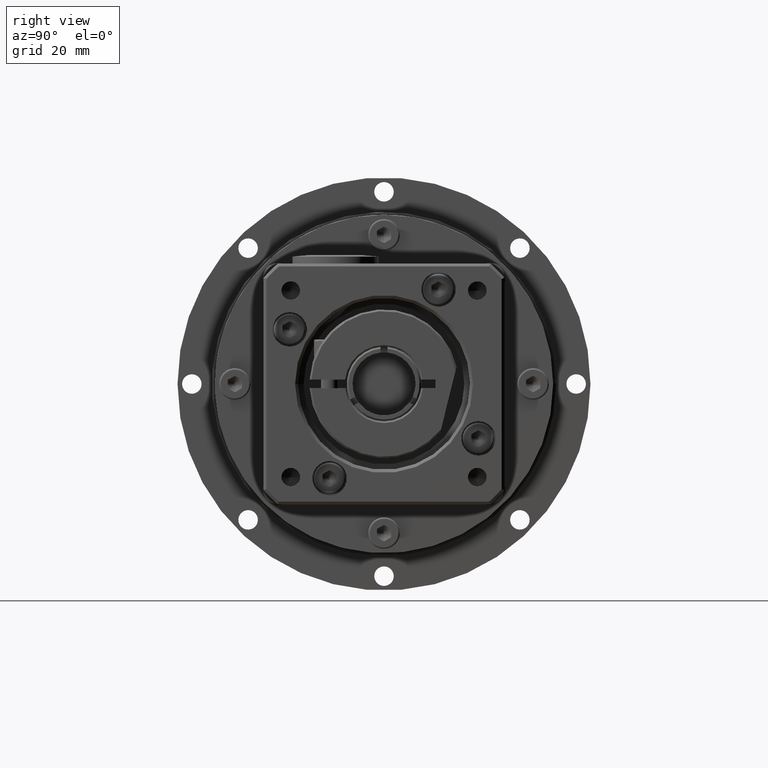
[diagram: clean part render]
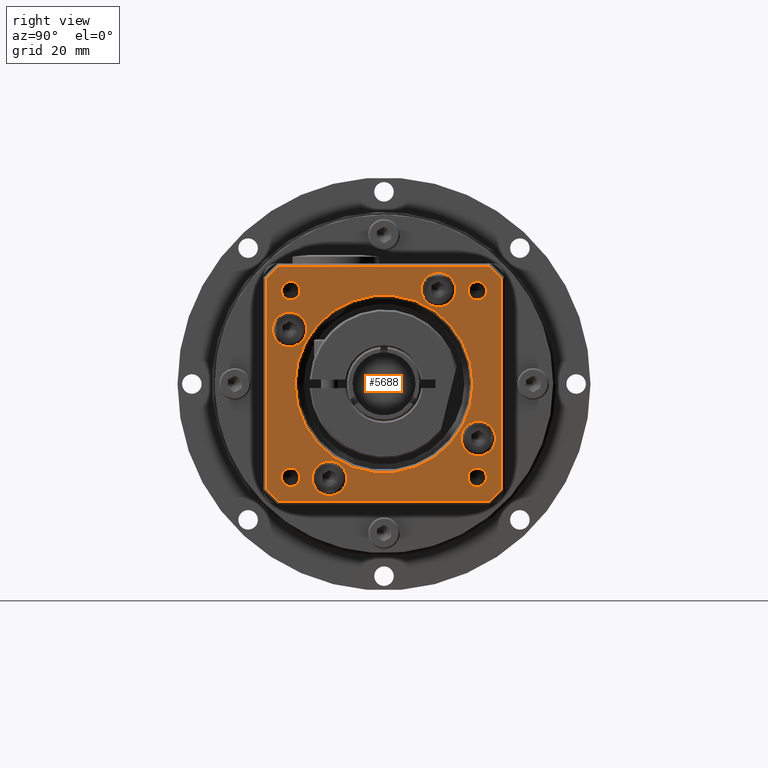
[diagram: same view with one face highlighted and labeled with its STEP entity id]
A machine part, right view. The second image highlights one B-rep face of the part: STEP entity #5688.
In plain terms, the highlighted planar face has unit normal (1, -0, 0).
Its self-contained STEP definition (entity closure, byte-faithful):
#224=LINE('',#8987,#473);
#225=LINE('',#9007,#474);
#227=LINE('',#9025,#476);
#230=LINE('',#9045,#479);
#473=VECTOR('',#7202,36.6606055596467);
#474=VECTOR('',#7211,36.6606055596467);
#476=VECTOR('',#7221,36.6606055596467);
#479=VECTOR('',#7232,36.6606055596467);
#837=PLANE('',#6214);
#1022=FACE_BOUND('',#1799,.T.);
#1023=FACE_BOUND('',#1800,.T.);
#1024=FACE_BOUND('',#1801,.T.);
#1025=FACE_BOUND('',#1802,.T.);
#1026=FACE_BOUND('',#1803,.T.);
#1027=FACE_BOUND('',#1804,.T.);
#1028=FACE_BOUND('',#1805,.T.);
#1029=FACE_BOUND('',#1806,.T.);
#1030=FACE_BOUND('',#1807,.T.);
#1332=FACE_OUTER_BOUND('',#1798,.T.);
#1798=EDGE_LOOP('',(#4205,#4206,#4207,#4208,#4209,#4210,#4211,#4212));
#1799=EDGE_LOOP('',(#4213));
#1800=EDGE_LOOP('',(#4214));
#1801=EDGE_LOOP('',(#4215));
#1802=EDGE_LOOP('',(#4216));
#1803=EDGE_LOOP('',(#4217));
#1804=EDGE_LOOP('',(#4218));
#1805=EDGE_LOOP('',(#4219));
#1806=EDGE_LOOP('',(#4220));
#1807=EDGE_LOOP('',(#4221));
#2336=CIRCLE('',#6193,27.5);
#2338=CIRCLE('',#6197,27.5);
#2341=CIRCLE('',#6202,27.5);
#2343=CIRCLE('',#6206,27.5);
#2348=CIRCLE('',#6215,15.5);
#2349=CIRCLE('',#6216,3.);
#2350=CIRCLE('',#6217,3.);
#2351=CIRCLE('',#6218,3.);
#2352=CIRCLE('',#6219,3.);
#2353=CIRCLE('',#6220,1.621);
#2354=CIRCLE('',#6221,1.621);
#2355=CIRCLE('',#6222,1.621);
#2356=CIRCLE('',#6223,1.621);
#2742=VERTEX_POINT('',#8985);
#2743=VERTEX_POINT('',#8986);
#2744=VERTEX_POINT('',#8997);
#2746=VERTEX_POINT('',#9006);
#2748=VERTEX_POINT('',#9015);
#2750=VERTEX_POINT('',#9024);
#2753=VERTEX_POINT('',#9035);
#2755=VERTEX_POINT('',#9044);
#2761=VERTEX_POINT('',#9070);
#2762=VERTEX_POINT('',#9072);
#2763=VERTEX_POINT('',#9074);
#2764=VERTEX_POINT('',#9076);
#2765=VERTEX_POINT('',#9078);
#2766=VERTEX_POINT('',#9080);
#2767=VERTEX_POINT('',#9082);
#2768=VERTEX_POINT('',#9084);
#2769=VERTEX_POINT('',#9086);
#3303=EDGE_CURVE('',#2742,#2743,#224,.T.);
#3306=EDGE_CURVE('',#2743,#2744,#2336,.T.);
#3309=EDGE_CURVE('',#2744,#2746,#225,.T.);
#3312=EDGE_CURVE('',#2746,#2748,#2338,.T.);
#3315=EDGE_CURVE('',#2748,#2750,#227,.T.);
#3319=EDGE_CURVE('',#2750,#2753,#2341,.T.);
#3322=EDGE_CURVE('',#2753,#2755,#230,.T.);
#3325=EDGE_CURVE('',#2755,#2742,#2343,.T.);
#3334=EDGE_CURVE('',#2761,#2761,#2348,.T.);
#3335=EDGE_CURVE('',#2762,#2762,#2349,.T.);
#3336=EDGE_CURVE('',#2763,#2763,#2350,.T.);
#3337=EDGE_CURVE('',#2764,#2764,#2351,.T.);
#3338=EDGE_CURVE('',#2765,#2765,#2352,.T.);
#3339=EDGE_CURVE('',#2766,#2766,#2353,.T.);
#3340=EDGE_CURVE('',#2767,#2767,#2354,.T.);
#3341=EDGE_CURVE('',#2768,#2768,#2355,.T.);
#3342=EDGE_CURVE('',#2769,#2769,#2356,.T.);
#4205=ORIENTED_EDGE('',*,*,#3303,.F.);
#4206=ORIENTED_EDGE('',*,*,#3325,.F.);
#4207=ORIENTED_EDGE('',*,*,#3322,.F.);
#4208=ORIENTED_EDGE('',*,*,#3319,.F.);
#4209=ORIENTED_EDGE('',*,*,#3315,.F.);
#4210=ORIENTED_EDGE('',*,*,#3312,.F.);
#4211=ORIENTED_EDGE('',*,*,#3309,.F.);
#4212=ORIENTED_EDGE('',*,*,#3306,.F.);
#4213=ORIENTED_EDGE('',*,*,#3334,.F.);
#4214=ORIENTED_EDGE('',*,*,#3335,.T.);
#4215=ORIENTED_EDGE('',*,*,#3336,.T.);
#4216=ORIENTED_EDGE('',*,*,#3337,.T.);
#4217=ORIENTED_EDGE('',*,*,#3338,.T.);
#4218=ORIENTED_EDGE('',*,*,#3339,.T.);
#4219=ORIENTED_EDGE('',*,*,#3340,.T.);
#4220=ORIENTED_EDGE('',*,*,#3341,.T.);
#4221=ORIENTED_EDGE('',*,*,#3342,.T.);
#5688=ADVANCED_FACE('',(#1332,#1022,#1023,#1024,#1025,#1026,#1027,#1028,
#1029,#1030),#837,.T.);
#6193=AXIS2_PLACEMENT_3D('',#8998,#7205,#7206);
#6197=AXIS2_PLACEMENT_3D('',#9016,#7215,#7216);
#6202=AXIS2_PLACEMENT_3D('',#9036,#7227,#7228);
#6206=AXIS2_PLACEMENT_3D('',#9052,#7237,#7238);
#6214=AXIS2_PLACEMENT_3D('',#9069,#7257,#7258);
#6215=AXIS2_PLACEMENT_3D('',#9071,#7259,#7260);
#6216=AXIS2_PLACEMENT_3D('',#9073,#7261,#7262);
#6217=AXIS2_PLACEMENT_3D('',#9075,#7263,#7264);
#6218=AXIS2_PLACEMENT_3D('',#9077,#7265,#7266);
#6219=AXIS2_PLACEMENT_3D('',#9079,#7267,#7268);
#6220=AXIS2_PLACEMENT_3D('',#9081,#7269,#7270);
#6221=AXIS2_PLACEMENT_3D('',#9083,#7271,#7272);
#6222=AXIS2_PLACEMENT_3D('',#9085,#7273,#7274);
#6223=AXIS2_PLACEMENT_3D('',#9087,#7275,#7276);
#7202=DIRECTION('',(1.36047229862591E-15,1.,-4.29100182329805E-14));
#7205=DIRECTION('center_axis',(-1.,1.36047229862582E-15,-2.01650819535837E-15));
#7206=DIRECTION('ref_axis',(-2.01650819535831E-15,4.31214892852901E-14,
1.));
#7211=DIRECTION('',(2.01650819535831E-15,-4.30157537591353E-14,-1.));
#7215=DIRECTION('center_axis',(-1.,1.36047229862582E-15,-2.01650819535837E-15));
#7216=DIRECTION('ref_axis',(2.01650819535831E-15,-4.31214892852901E-14,
-1.));
#7221=DIRECTION('',(-1.36047229862591E-15,-1.,4.31214892852901E-14));
#7227=DIRECTION('center_axis',(-1.,1.36047229862582E-15,-2.01650819535837E-15));
#7228=DIRECTION('ref_axis',(2.01650819535831E-15,-4.31214892852901E-14,
-1.));
#7232=DIRECTION('',(-2.01650819535831E-15,4.2698547180671E-14,1.));
#7237=DIRECTION('center_axis',(-1.,1.36047229862582E-15,-2.01650819535837E-15));
#7238=DIRECTION('ref_axis',(-2.01650819535831E-15,4.31214892852901E-14,
1.));
#7257=DIRECTION('center_axis',(1.,-1.36047229862582E-15,2.01650819535837E-15));
#7258=DIRECTION('ref_axis',(-2.1316282072803E-15,4.33431068813661E-14,1.));
#7259=DIRECTION('center_axis',(1.,-1.36047229862582E-15,2.01650819535837E-15));
#7260=DIRECTION('ref_axis',(1.36047229862591E-15,1.,-4.31214892852901E-14));
#7261=DIRECTION('center_axis',(-1.,1.36047229862582E-15,-2.01650819535837E-15));
#7262=DIRECTION('ref_axis',(-2.01650819535831E-15,4.31214892852901E-14,
1.));
#7263=DIRECTION('center_axis',(-1.,1.36047229862582E-15,-2.01650819535837E-15));
#7264=DIRECTION('ref_axis',(1.36047229862591E-15,1.,-4.30602569453327E-14));
#7265=DIRECTION('center_axis',(-1.,1.36047229862582E-15,-2.01650819535837E-15));
#7266=DIRECTION('ref_axis',(2.01650819535831E-15,-4.29990246053753E-14,
-1.));
#7267=DIRECTION('center_axis',(-1.,1.36047229862582E-15,-2.01650819535837E-15));
#7268=DIRECTION('ref_axis',(-1.36047229862591E-15,-1.,4.2937792265418E-14));
#7269=DIRECTION('center_axis',(-1.,1.36047229862582E-15,-2.01650819535837E-15));
#7270=DIRECTION('ref_axis',(-2.01650819535831E-15,4.31214892852901E-14,
1.));
#7271=DIRECTION('center_axis',(-1.,1.36047229862582E-15,-2.01650819535837E-15));
#7272=DIRECTION('ref_axis',(1.36047229862591E-15,1.,-4.30602569453327E-14));
#7273=DIRECTION('center_axis',(-1.,1.36047229862582E-15,-2.01650819535837E-15));
#7274=DIRECTION('ref_axis',(2.01650819535831E-15,-4.29990246053753E-14,
-1.));
#7275=DIRECTION('center_axis',(-1.,1.36047229862582E-15,-2.01650819535837E-15));
#7276=DIRECTION('ref_axis',(-1.36047229862591E-15,-1.,4.2937792265418E-14));
#8985=CARTESIAN_POINT('',(45.4048368965331,-67.46105952421,73.3867726493701));
#8986=CARTESIAN_POINT('',(45.4048368965331,-30.8004539645633,73.3867726493685));
#8987=CARTESIAN_POINT('',(45.4048368965331,-59.6307567443866,73.3867726493698));
#8997=CARTESIAN_POINT('',(45.4048368965331,-28.6307567443867,71.2170754291918));
#8998=CARTESIAN_POINT('Origin',(45.4048368965331,-49.1307567443875,52.8867726493693));
#9006=CARTESIAN_POINT('',(45.4048368965332,-28.6307567443883,34.5564698695451));
#9007=CARTESIAN_POINT('',(45.4048368965331,-28.6307567443871,63.3867726493684));
#9015=CARTESIAN_POINT('',(45.4048368965332,-30.800453964565,32.3867726493685));
#9016=CARTESIAN_POINT('Origin',(45.4048368965331,-49.1307567443875,52.8867726493693));
#9024=CARTESIAN_POINT('',(45.4048368965331,-67.4610595242118,32.3867726493701));
#9025=CARTESIAN_POINT('',(45.4048368965332,-38.6307567443884,32.3867726493689));
#9035=CARTESIAN_POINT('',(45.4048368965331,-69.6307567443883,34.5564698695468));
#9036=CARTESIAN_POINT('Origin',(45.4048368965331,-49.1307567443875,52.8867726493693));
#9044=CARTESIAN_POINT('',(45.4048368965331,-69.6307567443867,71.2170754291935));
#9045=CARTESIAN_POINT('',(45.4048368965331,-69.630756744388,42.3867726493702));
#9052=CARTESIAN_POINT('Origin',(45.4048368965331,-49.1307567443875,52.8867726493693));
#9069=CARTESIAN_POINT('Origin',(45.4048368965331,-49.1307567443875,52.8867726493693));
#9070=CARTESIAN_POINT('',(45.4048368965331,-64.6307567443875,52.88677264937));
#9071=CARTESIAN_POINT('Origin',(45.4048368965331,-49.1307567443875,52.8867726493693));
#9072=CARTESIAN_POINT('',(45.4048368965332,-32.6762740724835,46.3867726493686));
#9073=CARTESIAN_POINT('Origin',(45.4048368965332,-32.6762740724836,43.3867726493686));
#9074=CARTESIAN_POINT('',(45.4048368965332,-55.6307567443882,36.4322899774653));
#9075=CARTESIAN_POINT('Origin',(45.4048368965331,-58.6307567443882,36.4322899774654));
#9076=CARTESIAN_POINT('',(45.4048368965331,-65.5852394162916,59.38677264937));
#9077=CARTESIAN_POINT('Origin',(45.4048368965331,-65.5852394162914,62.38677264937));
#9078=CARTESIAN_POINT('',(45.4048368965331,-42.6307567443868,69.3412553212734));
#9079=CARTESIAN_POINT('Origin',(45.4048368965331,-39.6307567443868,69.3412553212732));
#9080=CARTESIAN_POINT('',(45.4048368965332,-32.8673007770975,38.244316682078));
#9081=CARTESIAN_POINT('Origin',(45.4048368965332,-32.8673007770976,36.623316682078));
#9082=CARTESIAN_POINT('',(45.4048368965331,-63.7732127116788,36.6233166820793));
#9083=CARTESIAN_POINT('Origin',(45.4048368965331,-65.3942127116788,36.6233166820794));
#9084=CARTESIAN_POINT('',(45.4048368965331,-65.3942127116775,67.5292286166606));
#9085=CARTESIAN_POINT('Origin',(45.4048368965331,-65.3942127116774,69.1502286166606));
#9086=CARTESIAN_POINT('',(45.4048368965331,-34.4883007770962,69.1502286166593));
#9087=CARTESIAN_POINT('Origin',(45.4048368965331,-32.8673007770962,69.1502286166592));